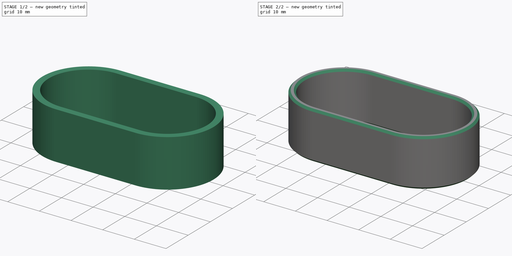
[diagram: build sequence overview — one tinted view per stage of 2, left to right]
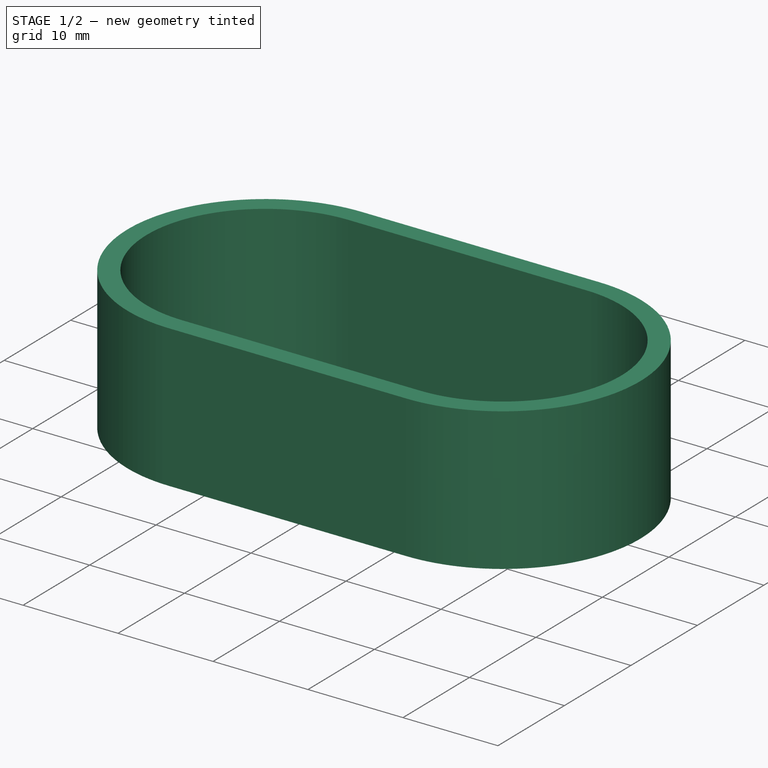
[diagram: stage 1 of 2 — iso view after this stage's code; geometry added in this stage tinted green]
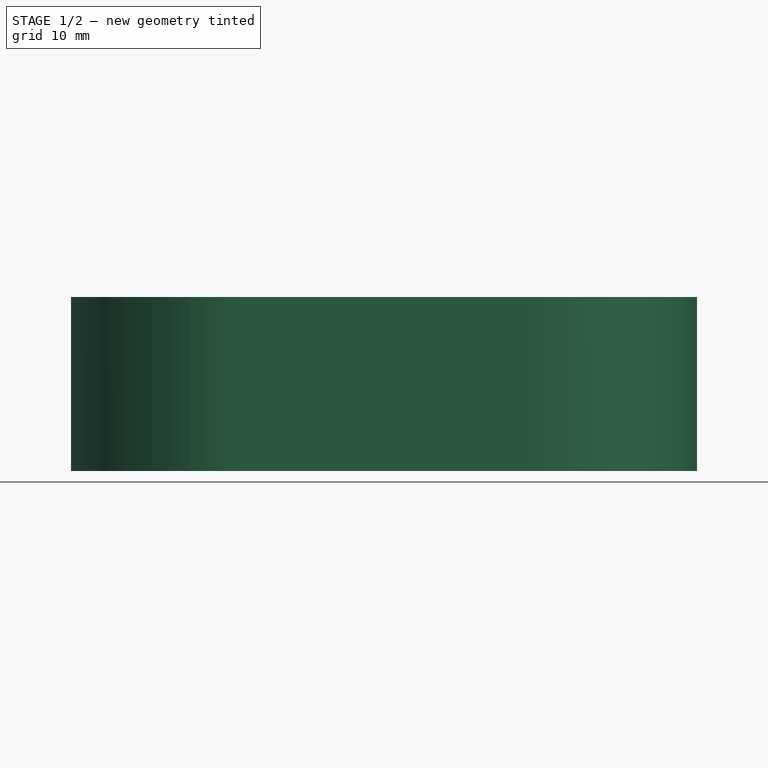
[diagram: stage 1 of 2 — front view after this stage's code; geometry added in this stage tinted green]
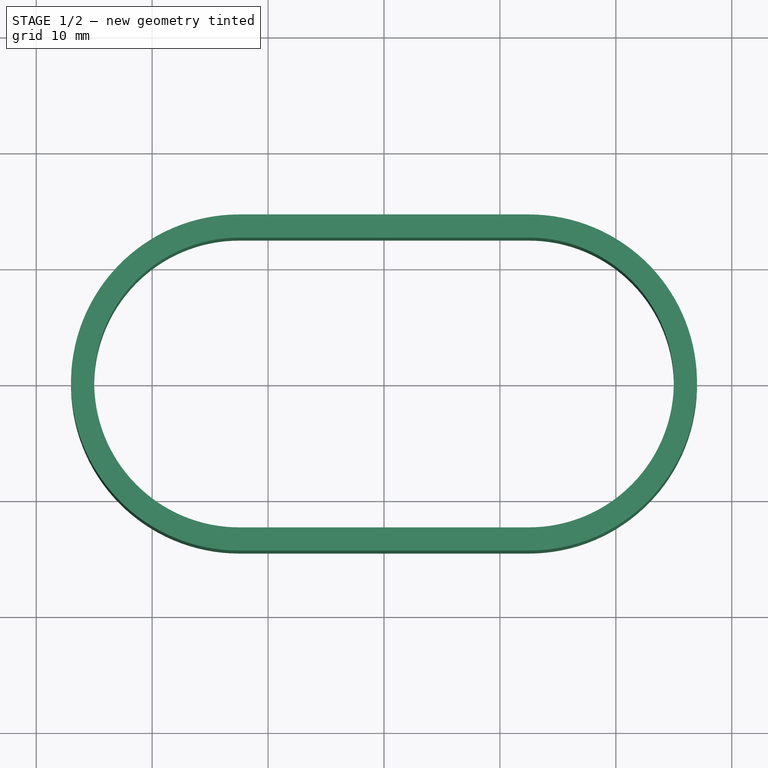
[diagram: stage 1 of 2 — top view after this stage's code; geometry added in this stage tinted green]
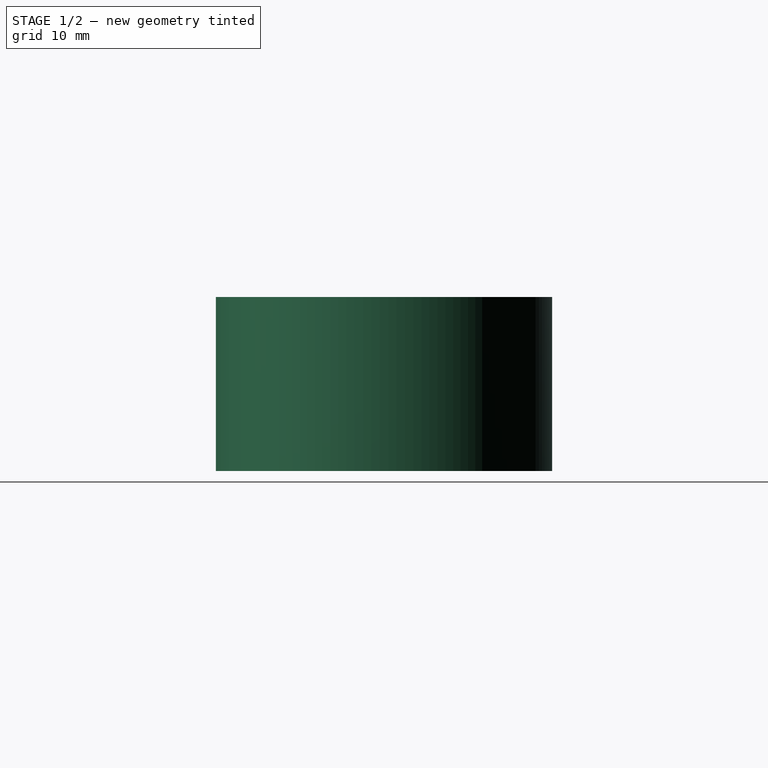
[diagram: stage 1 of 2 — right view after this stage's code; geometry added in this stage tinted green]
FCSTD DOCUMENT  (FreeCAD 0.22R37645 (Git))
Label: cable rings 2
License: All rights reserved
LicenseURL: http://en.wikipedia.org/wiki/All_rights_reserved
objects: Spreadsheet::Sheet×1, Sketcher::SketchObject×1, PartDesign::Pad×1, PartDesign::Chamfer×1, PartDesign::Body×1
note: 6 computed .brp shape members not serialized (recipe doc carries the construction recipe); baked Part::Feature solids carry a one-line shape summary decoded from their .brp

FEATURE [Spreadsheet::Sheet] Spreadsheet  label="q"
  cells = B4='length; C4='tall; D4='thickness; E4='wall; A5==hiddenref(Body002.config.String); B5(length)==.B11; C5(tall)==.C11; D5(thickness)==.D11; E5(wall)==.E11; A6='30x15; B6=30; C6=15; D6=10; E6==.E7; A7='50x30; B7=50; C7=30; D7=15; E7=2; A8='70x40; B8=70; C8=40; D8=20; E8=2; A9='70x35; B9=70; C9=35; D9=20; E9=2; A10='70x40; B10=70; C10=40; D10=20; E10=2; A11='50x25; B11=50; C11=25; D11=15; E11=2; A12='60x25; B12=60; C12=25; D12=15; E12=1.2; A13='70x40; B13=70; C13=40; D13=20; E13=2; A14='70x40; B14=70; C14=40; D14=20; E14=2; A15='70x40; B15=70; C15=40; D15=20; E15=2; B17='height; A18==hiddenref(Body002.kind.String); B18(height)==.B20; A19='circle; B19==length - 0.1; A20='oval; B20==tall
  expr: .cells.Bind.B18.B18 = tuple(.cells; <<B>> + str(hiddenref(Body002.kind) + 19); <<B>> + str(hiddenref(Body002.kind) + 19))
  expr: .cells.Bind.B5.E5 = tuple(.cells; <<B>> + str(hiddenref(Body002.config) + 6); <<E>> + str(hiddenref(Body002.config) + 6))
FEATURE [Sketcher::SketchObject] Sketch002
  AttachmentSupport = -> [XY_Plane002]
  FullyConstrained = true
  MapMode = 5
  expr: Constraints[16] = <<q>>.wall
  expr: Constraints[17] = <<q>>.height
  expr: Constraints[18] = <<q>>.length / 2
  sketch-geometry (9):
    g0: ArcOfCircle CenterX=-12.5 CenterY=0 CenterZ=0 NormalX=0 NormalY=0 NormalZ=1 AngleXU=0 Radius=12.5 StartAngle=1.5708 EndAngle=4.71239
    g1: ArcOfCircle CenterX=12.5 CenterY=0 CenterZ=0 NormalX=0 NormalY=0 NormalZ=1 AngleXU=0 Radius=12.5 StartAngle=4.71239 EndAngle=7.85398
    g2: LineSegment StartX=-12.5 StartY=12.5 StartZ=0 EndX=12.5 EndY=12.5 EndZ=0
    g3: LineSegment StartX=-12.5 StartY=-12.5 StartZ=0 EndX=12.5 EndY=-12.5 EndZ=0
    g4: ArcOfCircle CenterX=-12.5 CenterY=0 CenterZ=0 NormalX=0 NormalY=0 NormalZ=1 AngleXU=0 Radius=14.5 StartAngle=1.5708 EndAngle=4.71239
    g5: ArcOfCircle CenterX=12.5 CenterY=0 CenterZ=0 NormalX=0 NormalY=0 NormalZ=1 AngleXU=0 Radius=14.5 StartAngle=4.71239 EndAngle=7.85398
    g6: LineSegment StartX=-12.5 StartY=14.5 StartZ=0 EndX=12.5 EndY=14.5 EndZ=0
    g7: LineSegment StartX=-12.5 StartY=-14.5 StartZ=0 EndX=12.5 EndY=-14.5 EndZ=0
    g8: GeomPoint X=-25 Y=0 Z=0
  constraints (19):
    c: Tangent(g0,g2) = 1.5708
    c: Tangent(g0,g3) = -1.5708
    c: Tangent(g1,g2) = 1.5708
    c: Tangent(g1,g3) = -1.5708
    c: Equal(g0,g1)
    c: PointOnObject(g0,g-1)
    c: Tangent(g4,g6) = 1.5708
    c: Tangent(g4,g7) = -1.5708
    c: Tangent(g5,g6) = 1.5708
    c: Tangent(g5,g7) = -1.5708
    c: Equal(g4,g5)
    c: Symmetric(g0,g1,g-2)
    c: PointOnObject(g8,g0)
    c: PointOnObject(g8,g-1)
    c: Coincident(g4,g0)
    c: Coincident(g1,g5)
    c: DistanceY(g1,g5) = 2
    c: DistanceY(g1,g1) = 25
    c: DistanceX(g8,g-1) = 25
FEATURE [PartDesign::Pad] Pad
  Direction = (0,0,1)
  Length = 15
  Length2 = 10
  Profile = -> Sketch002
  ReferenceAxis = -> Sketch002 [N_Axis]
  Suppressed = false
  Type = 0
  expr: Length = <<q>>.thickness
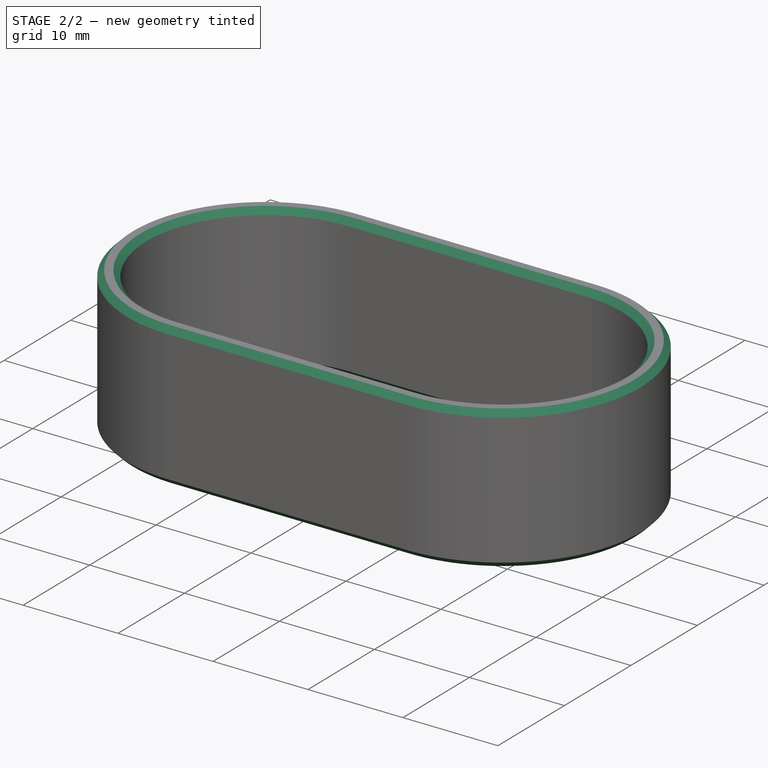
[diagram: stage 2 of 2 — iso view after this stage's code; geometry added in this stage tinted green]
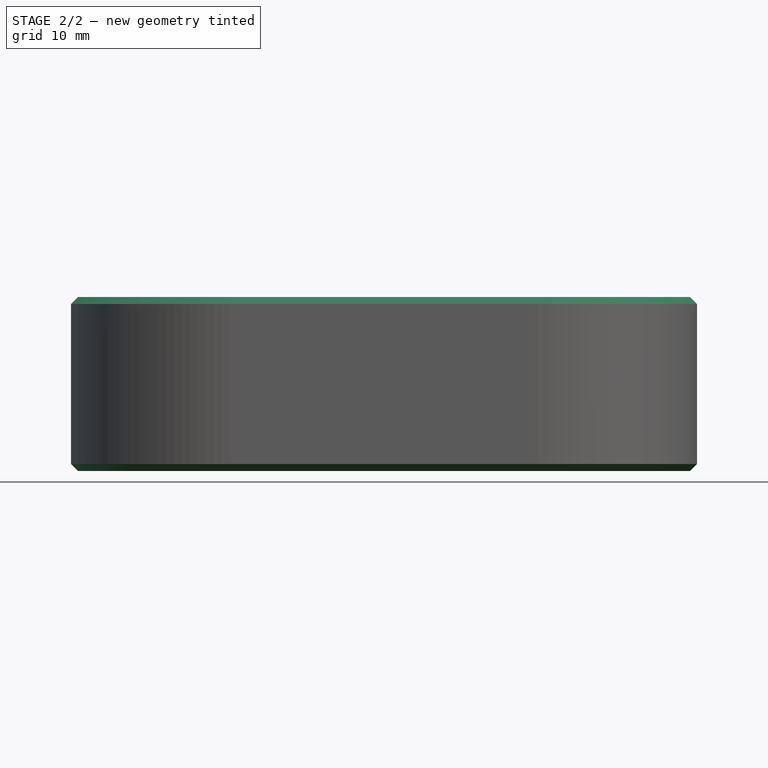
[diagram: stage 2 of 2 — front view after this stage's code; geometry added in this stage tinted green]
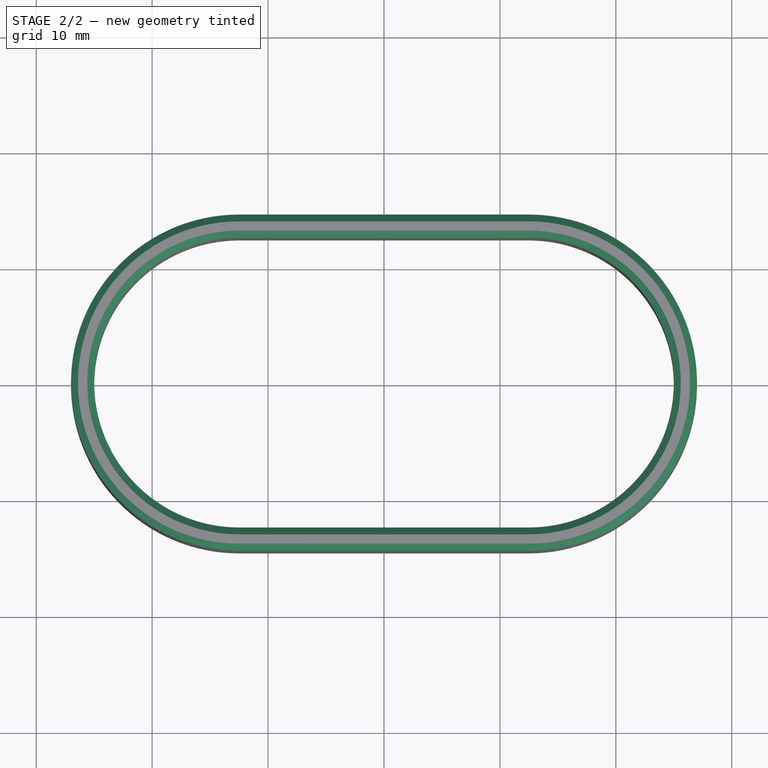
[diagram: stage 2 of 2 — top view after this stage's code; geometry added in this stage tinted green]
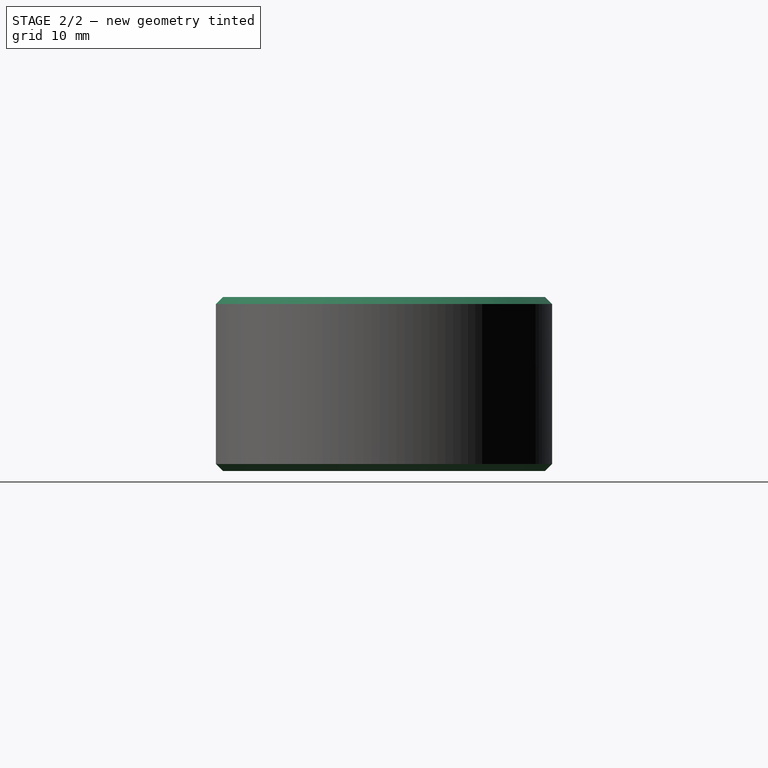
[diagram: stage 2 of 2 — right view after this stage's code; geometry added in this stage tinted green]
FEATURE [PartDesign::Chamfer] Chamfer
  Angle = 45
  Base = -> Pad [Face10,Face9]
  BaseFeature = -> Pad
  ChamferType = 0
  FlipDirection = false
  Size = 0.6
  Size2 = 1
  SupportTransform = false
  Suppressed = false
  UseAllEdges = false
FEATURE [PartDesign::Body] Body002  label="ring"
  AllowCompound = false
  Group = -> [Sketch002,Pad,Chamfer]
  Origin = -> Origin002
  Tip = -> Chamfer
  config = 5
  kind = 1
  expr: .config.Enum = Spreadsheet.cells[<<A6:|>>]
  expr: .kind.Enum = Spreadsheet.cells[<<A19:|>>]
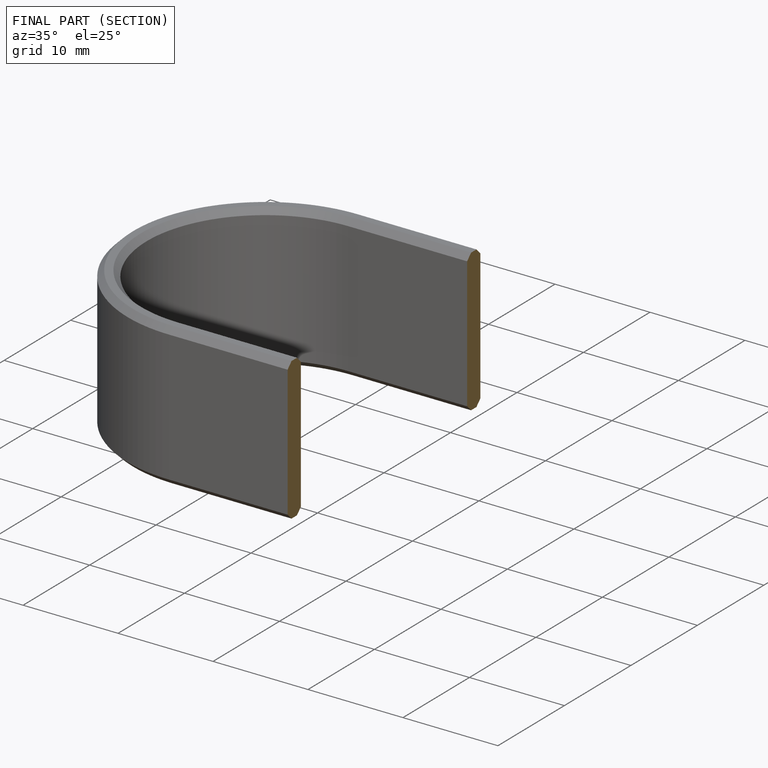
[diagram: finished part — half-section view (interior)]
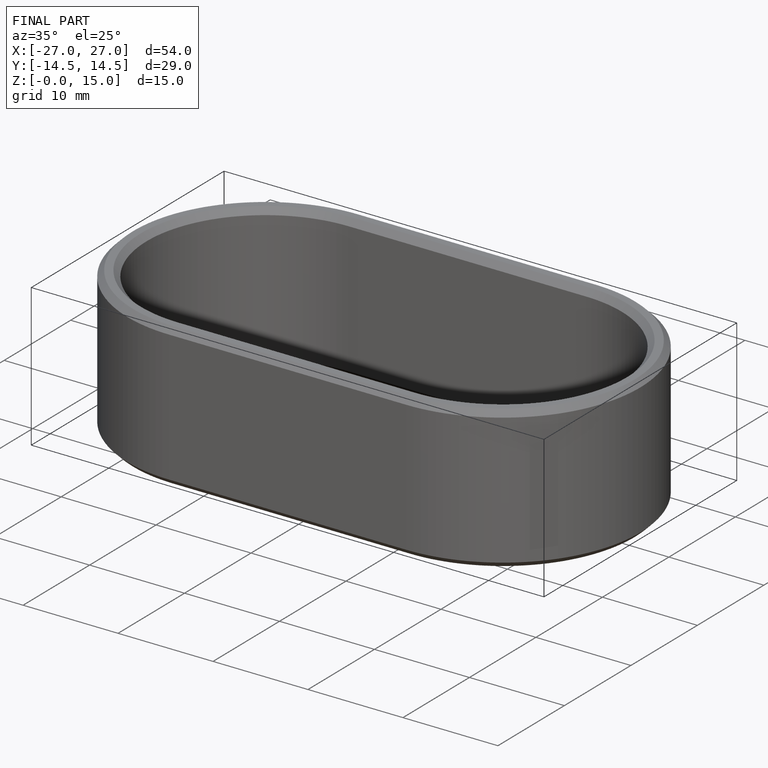
[diagram: finished part — iso view with bounding-box wireframe]
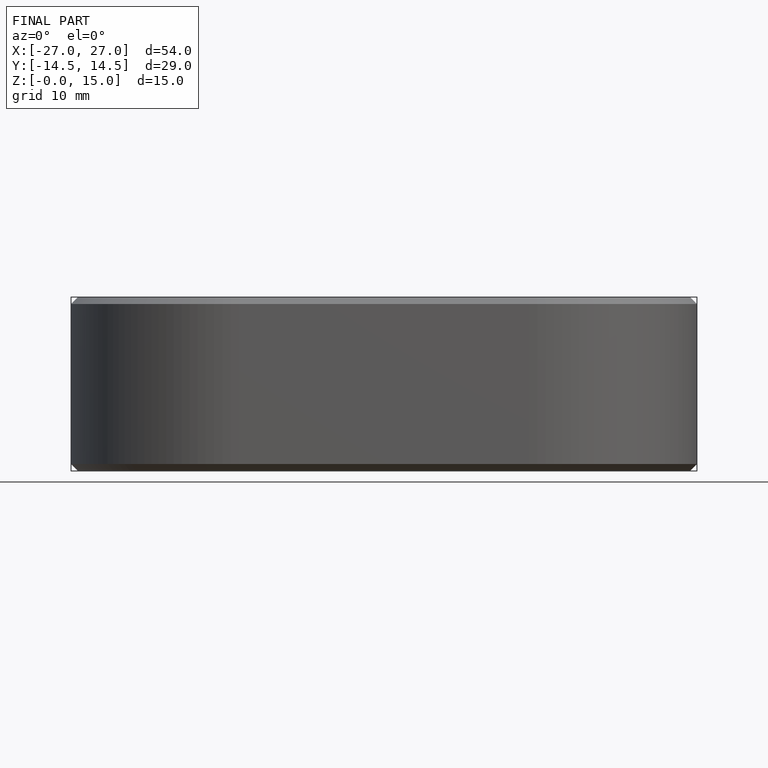
[diagram: finished part — front view with bounding-box wireframe]
